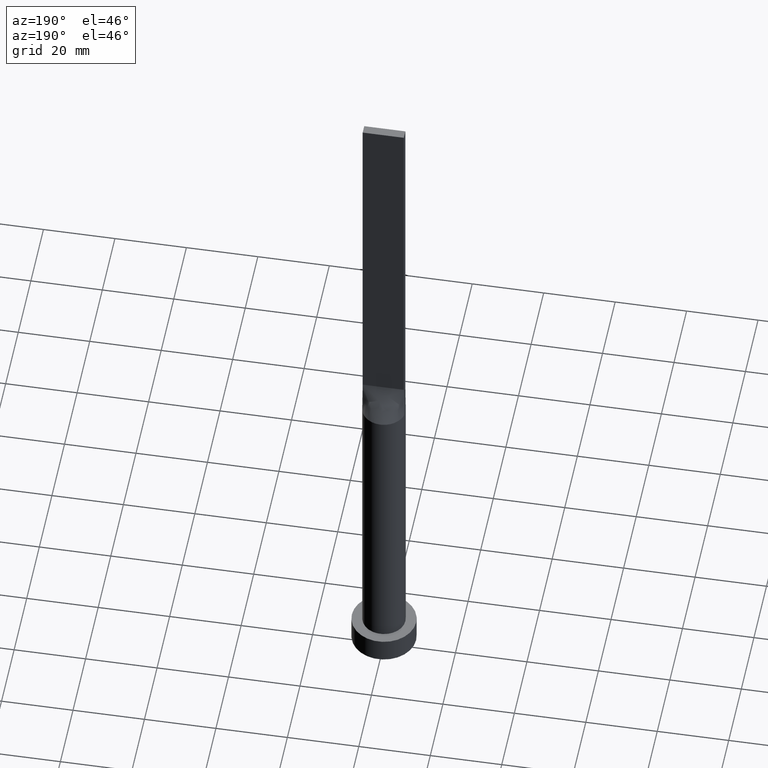
[diagram: clean part render]
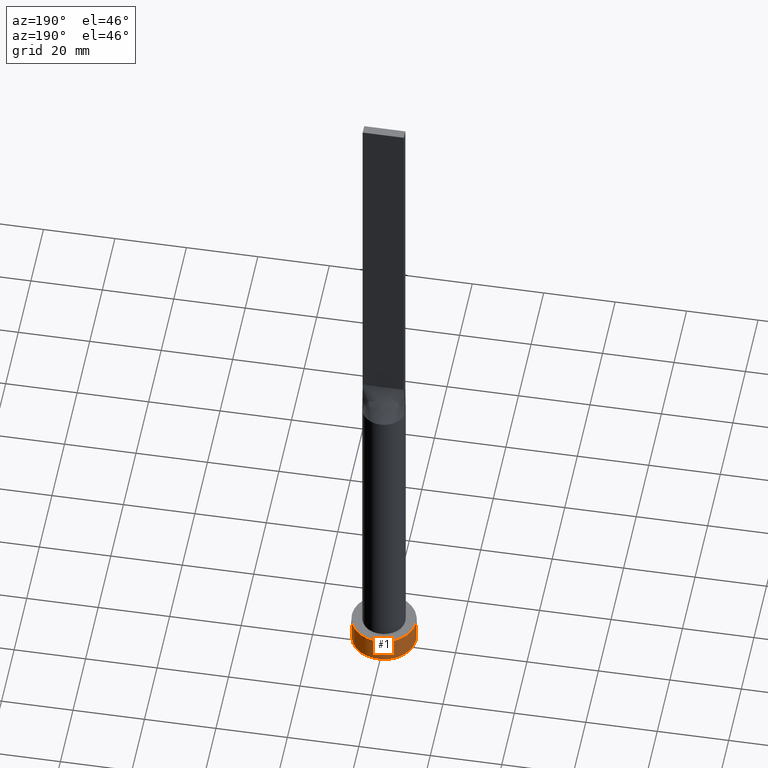
[diagram: same view with one face highlighted and labeled with its STEP entity id]
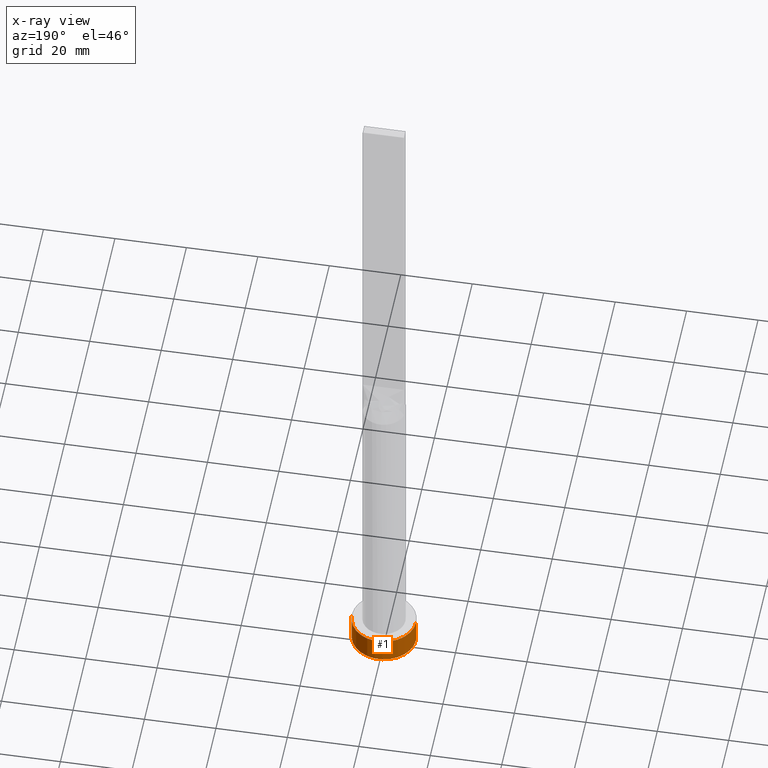
[diagram: x-ray of the same camera — body ghosted, the highlighted face saturated]
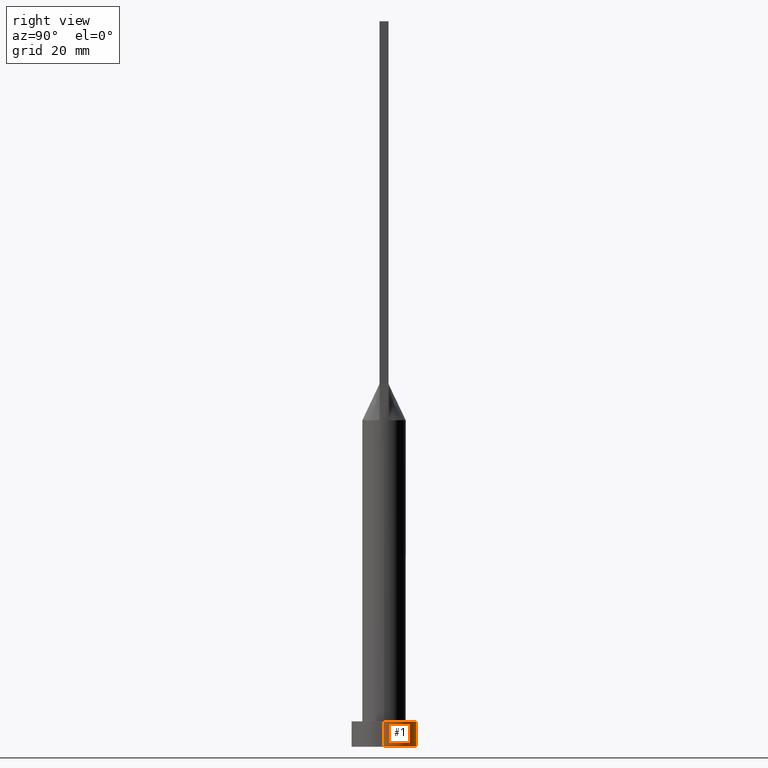
[diagram: same view with one face highlighted and labeled with its STEP entity id]
A machine part, auxiliary view. The second image highlights one B-rep face of the part: STEP entity #1.
The next image is the same camera in x-ray: the body ghosted, the highlighted face saturated — about 0% of this face is hidden behind the body in this view.
A second angle (right view) of the same face is appended — the face is thin or edge-on in the first view.
In plain terms, the highlighted cylindrical surface (edge-blend (fillet) strip) has radius 9 mm, axis along (-0, -0, -1).
Its self-contained STEP definition (entity closure, byte-faithful):
#1 = ADVANCED_FACE ( 'NONE', ( #494 ), #438, .T. ) ;
#2 = CARTESIAN_POINT ( 'NONE',  ( 9.000000000000000000, 1.102182119232617714E-15, 7.000000000000000000 ) ) ;
#6 = DIRECTION ( 'NONE',  ( 1.000000000000000000, 0.000000000000000000, 0.000000000000000000 ) ) ;
#7 = EDGE_LOOP ( 'NONE', ( #520, #281, #196, #96 ) ) ;
#56 = VECTOR ( 'NONE', #359, 1000.000000000000000 ) ;
#66 = VERTEX_POINT ( 'NONE', #118 ) ;
#96 = ORIENTED_EDGE ( 'NONE', *, *, #160, .F. ) ;
#101 = CARTESIAN_POINT ( 'NONE',  ( -9.000000000000000000, 0.000000000000000000, 0.000000000000000000 ) ) ;
#118 = CARTESIAN_POINT ( 'NONE',  ( 9.000000000000000000, 1.102182119232617714E-15, 7.000000000000000000 ) ) ;
#127 = CARTESIAN_POINT ( 'NONE',  ( -9.000000000000000000, 0.000000000000000000, 7.000000000000000000 ) ) ;
#160 = EDGE_CURVE ( 'NONE', #166, #308, #173, .T. ) ;
#163 = CARTESIAN_POINT ( 'NONE',  ( 0.000000000000000000, 0.000000000000000000, 7.000000000000000000 ) ) ;
#166 = VERTEX_POINT ( 'NONE', #361 ) ;
#170 = DIRECTION ( 'NONE',  ( -0.000000000000000000, -0.000000000000000000, -1.000000000000000000 ) ) ;
#173 = LINE ( 'NONE', #127, #521 ) ;
#178 = AXIS2_PLACEMENT_3D ( 'NONE', #163, #170, #490 ) ;
#196 = ORIENTED_EDGE ( 'NONE', *, *, #297, .T. ) ;
#223 = DIRECTION ( 'NONE',  ( -0.000000000000000000, -0.000000000000000000, -1.000000000000000000 ) ) ;
#249 = AXIS2_PLACEMENT_3D ( 'NONE', #295, #489, #583 ) ;
#281 = ORIENTED_EDGE ( 'NONE', *, *, #548, .T. ) ;
#295 = CARTESIAN_POINT ( 'NONE',  ( 0.000000000000000000, 0.000000000000000000, 7.000000000000000000 ) ) ;
#297 = EDGE_CURVE ( 'NONE', #513, #308, #347, .T. ) ;
#308 = VERTEX_POINT ( 'NONE', #101 ) ;
#320 = LINE ( 'NONE', #2, #56 ) ;
#343 = EDGE_CURVE ( 'NONE', #66, #166, #454, .T. ) ;
#347 = CIRCLE ( 'NONE', #510, 9.000000000000000000 ) ;
#359 = DIRECTION ( 'NONE',  ( -0.000000000000000000, -0.000000000000000000, -1.000000000000000000 ) ) ;
#361 = CARTESIAN_POINT ( 'NONE',  ( -9.000000000000000000, 0.000000000000000000, 7.000000000000000000 ) ) ;
#404 = CARTESIAN_POINT ( 'NONE',  ( 9.000000000000000000, 1.102182119232617714E-15, 0.000000000000000000 ) ) ;
#419 = CARTESIAN_POINT ( 'NONE',  ( 0.000000000000000000, 0.000000000000000000, 0.000000000000000000 ) ) ;
#438 = CYLINDRICAL_SURFACE ( 'NONE', #178, 9.000000000000000000 ) ;
#454 = CIRCLE ( 'NONE', #249, 9.000000000000000000 ) ;
#489 = DIRECTION ( 'NONE',  ( 0.000000000000000000, 0.000000000000000000, 1.000000000000000000 ) ) ;
#490 = DIRECTION ( 'NONE',  ( -1.000000000000000000, 0.000000000000000000, 0.000000000000000000 ) ) ;
#494 = FACE_OUTER_BOUND ( 'NONE', #7, .T. ) ;
#510 = AXIS2_PLACEMENT_3D ( 'NONE', #419, #557, #6 ) ;
#513 = VERTEX_POINT ( 'NONE', #404 ) ;
#520 = ORIENTED_EDGE ( 'NONE', *, *, #343, .F. ) ;
#521 = VECTOR ( 'NONE', #223, 1000.000000000000000 ) ;
#548 = EDGE_CURVE ( 'NONE', #66, #513, #320, .T. ) ;
#557 = DIRECTION ( 'NONE',  ( 0.000000000000000000, 0.000000000000000000, 1.000000000000000000 ) ) ;
#583 = DIRECTION ( 'NONE',  ( 1.000000000000000000, 0.000000000000000000, 0.000000000000000000 ) ) ;